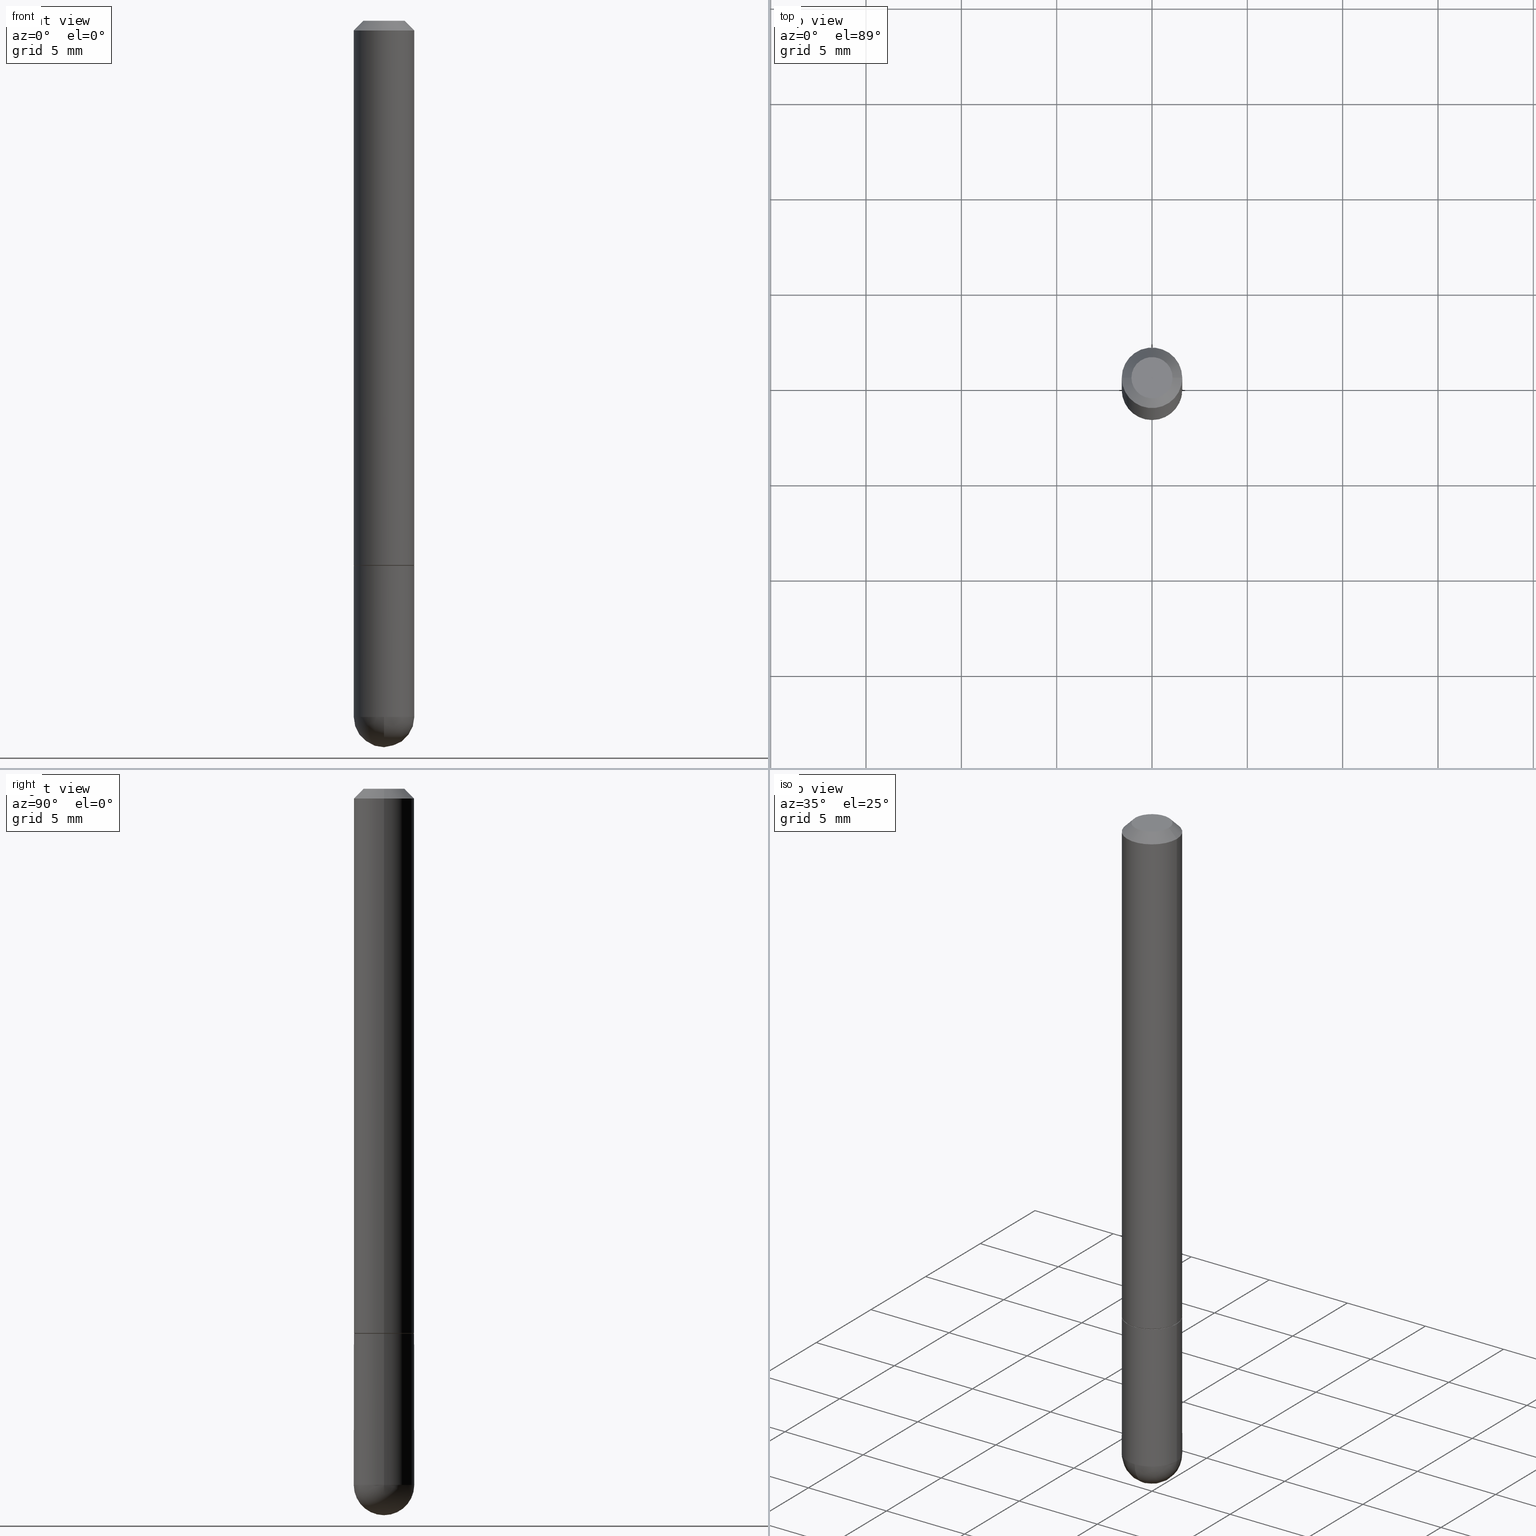
[diagram: canonical four-view strip — front | top / right | iso, engineering-drawing reading convention]
A machine part, canonical four-view strip (front | top / right | iso — engineering-drawing reading convention). The complete STEP part file that produces these views, byte-faithful:
ISO-10303-21;
HEADER;
FILE_DESCRIPTION (( 'STEP AP203' ),
    '1' );
FILE_NAME ('34630.STEP',
    '2024-02-21T18:09:59',
    ( '' ),
    ( '' ),
    'SwSTEP 2.0',
    'SolidWorks 2023',
    '' );
FILE_SCHEMA (( 'CONFIG_CONTROL_DESIGN' ));
ENDSEC;

DATA;
#1 = CIRCLE ( 'NONE', #253, 0.06250000000000020817 ) ;
#2 = AXIS2_PLACEMENT_3D ( 'NONE', #28, #339, #248 ) ;
#3 = ORIENTED_EDGE ( 'NONE', *, *, #102, .T. ) ;
#4 = EDGE_LOOP ( 'NONE', ( #14, #321, #200, #133 ) ) ;
#5 = DIRECTION ( 'NONE',  ( 2.445468806185136597E-29, -3.491481338843145583E-15, -1.000000000000000000 ) ) ;
#6 = PERSON_AND_ORGANIZATION ( #219, #113 ) ;
#7 = ORIENTED_EDGE ( 'NONE', *, *, #220, .T. ) ;
#8 = ORIENTED_EDGE ( 'NONE', *, *, #271, .F. ) ;
#9 = ORIENTED_EDGE ( 'NONE', *, *, #347, .F. ) ;
#10 = CARTESIAN_POINT ( 'NONE',  ( 0.000000000000000000, 0.000000000000000000, 0.000000000000000000 ) ) ;
#11 = EDGE_LOOP ( 'NONE', ( #385, #108 ) ) ;
#12 = DIRECTION ( 'NONE',  ( -2.445468806185136877E-29, 3.491481338843145188E-15, 1.000000000000000000 ) ) ;
#13 = DIRECTION ( 'NONE',  ( 1.000000000000000000, -6.982962677686266711E-15, 4.876176775795935793E-29 ) ) ;
#14 = ORIENTED_EDGE ( 'NONE', *, *, #119, .F. ) ;
#15 = DIRECTION ( 'NONE',  ( 6.982962677686266711E-15, 1.000000000000000000, -4.370956789862806161E-15 ) ) ;
#16 = DIRECTION ( 'NONE',  ( -2.445468806185136597E-29, 3.491481338843145583E-15, 1.000000000000000000 ) ) ;
#17 = CLOSED_SHELL ( 'NONE', ( #42, #410, #299, #365, #251 ) ) ;
#18 = LOCAL_TIME ( 13, 9, 59.00000000000000000, #382 ) ;
#19 = CARTESIAN_POINT ( 'NONE',  ( 0.06250000000000001388, -4.986107516375840208E-16, -0.02000000000000006981 ) ) ;
#20 = EDGE_CURVE ( 'NONE', #198, #361, #22, .T. ) ;
#21 = DIRECTION ( 'NONE',  ( -2.445468806185136597E-29, 3.491481338843145583E-15, 1.000000000000000000 ) ) ;
#22 = CIRCLE ( 'NONE', #292, 0.06250000000000020817 ) ;
#23 = PRODUCT_DEFINITION_FORMATION_WITH_SPECIFIED_SOURCE ( 'ANY', '', #122, .NOT_KNOWN. ) ;
#24 = EDGE_CURVE ( 'NONE', #232, #74, #117, .T. ) ;
#25 = DIRECTION ( 'NONE',  ( -2.445468806185136877E-29, 3.491481338843145188E-15, 1.000000000000000000 ) ) ;
#26 = CARTESIAN_POINT ( 'NONE',  ( 0.06250000000000001388, -4.986107516375840208E-16, -0.02000000000000006981 ) ) ;
#27 = LINE ( 'NONE', #264, #278 ) ;
#28 = CARTESIAN_POINT ( 'NONE',  ( 2.751152406958279232E-29, -3.927916506198539224E-15, -1.125000000000000222 ) ) ;
#29 = AXIS2_PLACEMENT_3D ( 'NONE', #50, #404, #90 ) ;
#30 = DATE_AND_TIME ( #99, #18 ) ;
#31 = VERTEX_POINT ( 'NONE', #274 ) ;
#32 = EDGE_LOOP ( 'NONE', ( #83, #225, #174, #106 ) ) ;
#33 = ORIENTED_EDGE ( 'NONE', *, *, #291, .T. ) ;
#34 = ORIENTED_EDGE ( 'NONE', *, *, #76, .T. ) ;
#35 = DIRECTION ( 'NONE',  ( 1.000000000000000000, 0.000000000000000000, 0.000000000000000000 ) ) ;
#36 = FACE_OUTER_BOUND ( 'NONE', #112, .T. ) ;
#37 = AXIS2_PLACEMENT_3D ( 'NONE', #10, #139, #383 ) ;
#38 = ORIENTED_EDGE ( 'NONE', *, *, #20, .T. ) ;
#39 = AXIS2_PLACEMENT_3D ( 'NONE', #296, #16, #412 ) ;
#40 = CALENDAR_DATE ( 2024, 21, 2 ) ;
#41 = DIRECTION ( 'NONE',  ( -2.445468806185136597E-29, 3.491481338843145583E-15, 1.000000000000000000 ) ) ;
#42 = ADVANCED_FACE ( 'NONE', ( #243 ), #146, .T. ) ;
#43 = LOCAL_TIME ( 13, 9, 59.00000000000000000, #170 ) ;
#44 = PRODUCT_DEFINITION ( 'UNKNOWN', '', #23, #346 ) ;
#45 = CARTESIAN_POINT ( 'NONE',  ( 0.000000000000000000, 0.000000000000000000, 0.000000000000000000 ) ) ;
#46 = DIRECTION ( 'NONE',  ( 1.000000000000000000, -6.982962677686265922E-15, 4.883557194083112340E-29 ) ) ;
#47 = EDGE_CURVE ( 'NONE', #101, #275, #158, .T. ) ;
#48 = VECTOR ( 'NONE', #25, 39.37007874015748143 ) ;
#49 = CIRCLE ( 'NONE', #323, 0.06250000000000015266 ) ;
#50 = CARTESIAN_POINT ( 'NONE',  ( 3.515361408891134418E-29, -5.019004424587023131E-15, -1.437500000000000222 ) ) ;
#51 = CARTESIAN_POINT ( 'NONE',  ( 4.364351673554191316E-16, 0.06249999999999607259, -1.125000000000000444 ) ) ;
#52 = CARTESIAN_POINT ( 'NONE',  ( 2.751152406958279232E-29, -3.927916506198539224E-15, -1.125000000000000222 ) ) ;
#53 = AXIS2_PLACEMENT_3D ( 'NONE', #342, #124, #409 ) ;
#54 = EDGE_CURVE ( 'NONE', #97, #168, #188, .T. ) ;
#55 = PLANE ( 'NONE',  #2 ) ;
#56 = PRODUCT_RELATED_PRODUCT_CATEGORY ( 'detail', '', ( #122 ) ) ;
#57 = UNCERTAINTY_MEASURE_WITH_UNIT (LENGTH_MEASURE( 1.000000000000000082E-05 ), #281, 'distance_accuracy_value', 'NONE');
#58 = FACE_OUTER_BOUND ( 'NONE', #32, .T. ) ;
#59 = CALENDAR_DATE ( 2024, 21, 2 ) ;
#60 = AXIS2_PLACEMENT_3D ( 'NONE', #78, #82, #362 ) ;
#61 = APPROVAL_PERSON_ORGANIZATION ( #211, #142, #397 ) ;
#62 = ORIENTED_EDGE ( 'NONE', *, *, #208, .T. ) ;
#63 = CARTESIAN_POINT ( 'NONE',  ( -0.06149999999999999911, -3.485634269357855609E-15, -1.125000000000000222 ) ) ;
#64 =( NAMED_UNIT ( * ) SI_UNIT ( $, .STERADIAN. ) SOLID_ANGLE_UNIT ( ) );
#65 = FACE_OUTER_BOUND ( 'NONE', #222, .T. ) ;
#66 = LINE ( 'NONE', #392, #366 ) ;
#67 = EDGE_CURVE ( 'NONE', #240, #232, #143, .T. ) ;
#68 = EDGE_LOOP ( 'NONE', ( #34, #3 ) ) ;
#69 = ORIENTED_EDGE ( 'NONE', *, *, #181, .T. ) ;
#70 = PLANE ( 'NONE',  #260 ) ;
#71 = FACE_OUTER_BOUND ( 'NONE', #4, .T. ) ;
#72 = CARTESIAN_POINT ( 'NONE',  ( 0.06250000000000000000, -4.909895632748173241E-15, -1.437500000000000222 ) ) ;
#73 = CIRCLE ( 'NONE', #384, 0.06149999999999999911 ) ;
#74 = VERTEX_POINT ( 'NONE', #138 ) ;
#75 = DIRECTION ( 'NONE',  ( 1.000000000000000000, -6.982962677686262766E-15, 0.000000000000000000 ) ) ;
#76 = EDGE_CURVE ( 'NONE', #352, #259, #237, .T. ) ;
#77 = ADVANCED_BREP_SHAPE_REPRESENTATION ( '34630', ( #93, #241, #293 ), #279 ) ;
#78 = CARTESIAN_POINT ( 'NONE',  ( 3.515361408891134418E-29, -5.019004424587023131E-15, -1.437500000000000222 ) ) ;
#79 = CONICAL_SURFACE ( 'NONE', #91, 0.06250000000000001388, 0.7853981633974460586 ) ;
#80 = CARTESIAN_POINT ( 'NONE',  ( 4.890937612370289799E-31, -6.982962677686315028E-17, -0.02000000000000006981 ) ) ;
#81 = PERSON_AND_ORGANIZATION ( #219, #113 ) ;
#82 = DIRECTION ( 'NONE',  ( -2.445468806185136597E-29, 3.491481338843145583E-15, 1.000000000000000000 ) ) ;
#83 = ORIENTED_EDGE ( 'NONE', *, *, #191, .F. ) ;
#84 = DATE_AND_TIME ( #213, #172 ) ;
#85 = LINE ( 'NONE', #216, #150 ) ;
#86 = LINE ( 'NONE', #185, #189 ) ;
#87 = EDGE_CURVE ( 'NONE', #198, #232, #1, .T. ) ;
#88 = APPLICATION_CONTEXT ( 'configuration controlled 3d designs of mechanical parts and assemblies' ) ;
#89 = FACE_OUTER_BOUND ( 'NONE', #288, .T. ) ;
#90 = DIRECTION ( 'NONE',  ( 1.000000000000000000, -6.982962677686262766E-15, 0.000000000000000000 ) ) ;
#91 = AXIS2_PLACEMENT_3D ( 'NONE', #294, #5, #169 ) ;
#92 = DIRECTION ( 'NONE',  ( 1.000000000000000000, -6.982962677686269077E-15, 0.000000000000000000 ) ) ;
#93 = MANIFOLD_SOLID_BREP ( 'Body-Move/Copy2[1]', #17 ) ;
#94 = CARTESIAN_POINT ( 'NONE',  ( 2.967759138016669466E-16, 0.04250000000000009326, -1.761332880864866905E-16 ) ) ;
#95 = DATE_TIME_ROLE ( 'creation_date' ) ;
#96 = ORIENTED_EDGE ( 'NONE', *, *, #208, .F. ) ;
#97 = VERTEX_POINT ( 'NONE', #327 ) ;
#98 = DIRECTION ( 'NONE',  ( -2.445468806185136597E-29, 3.491481338843145583E-15, 1.000000000000000000 ) ) ;
#99 = CALENDAR_DATE ( 2024, 21, 2 ) ;
#100 = CC_DESIGN_APPROVAL ( #136, ( #23 ) ) ;
#101 = VERTEX_POINT ( 'NONE', #238 ) ;
#102 = EDGE_CURVE ( 'NONE', #259, #352, #268, .T. ) ;
#103 = MECHANICAL_CONTEXT ( 'NONE', #88, 'mechanical' ) ;
#104 = ORIENTED_EDGE ( 'NONE', *, *, #20, .F. ) ;
#105 = PERSON_AND_ORGANIZATION ( #219, #113 ) ;
#106 = ORIENTED_EDGE ( 'NONE', *, *, #152, .F. ) ;
#107 = CYLINDRICAL_SURFACE ( 'NONE', #244, 0.06250000000000008327 ) ;
#108 = ORIENTED_EDGE ( 'NONE', *, *, #191, .T. ) ;
#109 = APPLICATION_PROTOCOL_DEFINITION ( 'international standard', 'config_control_design', 1994, #88 ) ;
#110 = DIRECTION ( 'NONE',  ( 6.982962677686267499E-15, 1.000000000000000000, 0.000000000000000000 ) ) ;
#111 = AXIS2_PLACEMENT_3D ( 'NONE', #394, #335, #300 ) ;
#112 = EDGE_LOOP ( 'NONE', ( #33, #62, #130, #286 ) ) ;
#113 = ORGANIZATION ( 'UNSPECIFIED', 'UNSPECIFIED', '' ) ;
#114 = APPROVAL_DATE_TIME ( #84, #142 ) ;
#115 = DIRECTION ( 'NONE',  ( -2.445468806185136597E-29, 3.491481338843145583E-15, 1.000000000000000000 ) ) ;
#116 = DIRECTION ( 'NONE',  ( 1.000000000000000000, -6.982962677686265922E-15, 4.870577812114074077E-29 ) ) ;
#117 = CIRCLE ( 'NONE', #328, 0.06250000000000000000 ) ;
#118 = CC_DESIGN_APPROVAL ( #401, ( #44 ) ) ;
#119 = EDGE_CURVE ( 'NONE', #168, #275, #212, .T. ) ;
#120 = ADVANCED_FACE ( 'NONE', ( #272 ), #398, .T. ) ;
#121 = CIRCLE ( 'NONE', #29, 0.06250000000000000000 ) ;
#122 = PRODUCT ( '34630', '34630', '', ( #103 ) ) ;
#123 = LINE ( 'NONE', #250, #48 ) ;
#124 = DIRECTION ( 'NONE',  ( -2.445468806185136597E-29, 3.491481338843145583E-15, 1.000000000000000000 ) ) ;
#125 = EDGE_CURVE ( 'NONE', #74, #361, #121, .T. ) ;
#126 = AXIS2_PLACEMENT_3D ( 'NONE', #252, #309, #92 ) ;
#127 = EDGE_CURVE ( 'NONE', #275, #101, #179, .T. ) ;
#128 = SPHERICAL_SURFACE ( 'NONE', #183, 0.06250000000000020817 ) ;
#129 = PERSON_AND_ORGANIZATION ( #219, #113 ) ;
#130 = ORIENTED_EDGE ( 'NONE', *, *, #127, .F. ) ;
#131 = DIRECTION ( 'NONE',  ( 1.000000000000000000, -6.982962677686269866E-15, 0.000000000000000000 ) ) ;
#132 = EDGE_CURVE ( 'NONE', #193, #204, #73, .T. ) ;
#133 = ORIENTED_EDGE ( 'NONE', *, *, #47, .T. ) ;
#134 = AXIS2_PLACEMENT_3D ( 'NONE', #51, #187, #306 ) ;
#135 = ORIENTED_EDGE ( 'NONE', *, *, #24, .T. ) ;
#136 = APPROVAL ( #197, 'UNSPECIFIED' ) ;
#137 = LENGTH_MEASURE_WITH_UNIT ( LENGTH_MEASURE( 0.02539999999999999897 ), #317 );
#138 = CARTESIAN_POINT ( 'NONE',  ( -0.06250000000000000000, -4.029371255542718167E-15, -1.437500000000000222 ) ) ;
#139 = DIRECTION ( 'NONE',  ( -2.445468806185136597E-29, 3.491481338843145583E-15, 1.000000000000000000 ) ) ;
#140 = VERTEX_POINT ( 'NONE', #190 ) ;
#141 = PERSON_AND_ORGANIZATION ( #219, #113 ) ;
#142 = APPROVAL ( #269, 'UNSPECIFIED' ) ;
#143 = CIRCLE ( 'NONE', #60, 0.06250000000000000000 ) ;
#144 = SECURITY_CLASSIFICATION ( '', '', #148 ) ;
#145 = DIRECTION ( 'NONE',  ( 0.7071067811865459074, -7.319954787623249734E-15, -0.7071067811865491270 ) ) ;
#146 = CYLINDRICAL_SURFACE ( 'NONE', #202, 0.06250000000000000000 ) ;
#147 = EDGE_CURVE ( 'NONE', #140, #31, #194, .T. ) ;
#148 = SECURITY_CLASSIFICATION_LEVEL ( 'unclassified' ) ;
#149 = CARTESIAN_POINT ( 'NONE',  ( 3.515361408891134418E-29, -5.019004424587023131E-15, -1.437500000000000222 ) ) ;
#150 = VECTOR ( 'NONE', #407, 39.37007874015748143 ) ;
#151 = DATE_AND_TIME ( #246, #261 ) ;
#152 = EDGE_CURVE ( 'NONE', #97, #101, #85, .T. ) ;
#153 = CARTESIAN_POINT ( 'NONE',  ( 0.06250000000000000000, -4.364351673553930894E-15, -1.125000000000000222 ) ) ;
#154 = AXIS2_PLACEMENT_3D ( 'NONE', #45, #115, #332 ) ;
#155 = CONICAL_SURFACE ( 'NONE', #53, 0.06149999999999999911, 0.7853981633975591903 ) ;
#156 = DIRECTION ( 'NONE',  ( 1.000000000000000000, -6.982962677686267499E-15, 0.000000000000000000 ) ) ;
#157 = CARTESIAN_POINT ( 'NONE',  ( 0.04250000000000009326, -3.950909582714374348E-16, -5.549066237130292766E-17 ) ) ;
#158 = CIRCLE ( 'NONE', #303, 0.06250000000000001388 ) ;
#159 = VECTOR ( 'NONE', #235, 39.37007874015748143 ) ;
#160 = DIRECTION ( 'NONE',  ( 1.000000000000000000, -6.982962677686265922E-15, 4.870577812114074077E-29 ) ) ;
#161 = EDGE_LOOP ( 'NONE', ( #9, #7, #226, #255 ) ) ;
#162 = ORIENTED_EDGE ( 'NONE', *, *, #220, .F. ) ;
#163 = APPROVAL_DATE_TIME ( #30, #136 ) ;
#164 = EDGE_CURVE ( 'NONE', #74, #259, #123, .T. ) ;
#165 = ORIENTED_EDGE ( 'NONE', *, *, #347, .T. ) ;
#166 = DIRECTION ( 'NONE',  ( 0.7071067811866259545, -2.468850131083078659E-15, 0.7071067811864690800 ) ) ;
#167 = CC_DESIGN_DATE_AND_TIME_ASSIGNMENT ( #151, #369, ( #144 ) ) ;
#168 = VERTEX_POINT ( 'NONE', #157 ) ;
#169 = DIRECTION ( 'NONE',  ( -1.000000000000000000, 6.982962677686267499E-15, 0.000000000000000000 ) ) ;
#170 = COORDINATED_UNIVERSAL_TIME_OFFSET ( 5, 0, .BEHIND. ) ;
#171 = CIRCLE ( 'NONE', #39, 0.06250000000000000000 ) ;
#172 = LOCAL_TIME ( 13, 9, 59.00000000000000000, #336 ) ;
#173 = FACE_OUTER_BOUND ( 'NONE', #380, .T. ) ;
#174 = ORIENTED_EDGE ( 'NONE', *, *, #127, .T. ) ;
#175 = PERSON_AND_ORGANIZATION ( #219, #113 ) ;
#176 = CARTESIAN_POINT ( 'NONE',  ( 2.751152406958279232E-29, -3.927916506198539224E-15, -1.125000000000000222 ) ) ;
#177 = DIRECTION ( 'NONE',  ( -1.000000000000000000, 6.982962677686267499E-15, 0.000000000000000000 ) ) ;
#178 = DIRECTION ( 'NONE',  ( -2.445468806185136597E-29, 3.491481338843145583E-15, 1.000000000000000000 ) ) ;
#179 = CIRCLE ( 'NONE', #406, 0.06250000000000001388 ) ;
#180 = CC_DESIGN_SECURITY_CLASSIFICATION ( #144, ( #23 ) ) ;
#181 = EDGE_CURVE ( 'NONE', #240, #352, #27, .T. ) ;
#182 = CARTESIAN_POINT ( 'NONE',  ( 2.751152406958279232E-29, -3.927916506198539224E-15, -1.125000000000000222 ) ) ;
#183 = AXIS2_PLACEMENT_3D ( 'NONE', #254, #221, #374 ) ;
#184 = CC_DESIGN_PERSON_AND_ORGANIZATION_ASSIGNMENT ( #105, #201, ( #122 ) ) ;
#185 = CARTESIAN_POINT ( 'NONE',  ( -0.06149999999999999911, -3.490932723706077616E-15, -1.125000000000000222 ) ) ;
#186 = DIRECTION ( 'NONE',  ( -2.445468806185136597E-29, 3.491481338843145583E-15, 1.000000000000000000 ) ) ;
#187 = DIRECTION ( 'NONE',  ( 2.438088387897960049E-29, -3.491481338843145188E-15, -1.000000000000000000 ) ) ;
#188 = CIRCLE ( 'NONE', #298, 0.04250000000000009326 ) ;
#189 = VECTOR ( 'NONE', #218, 39.37007874015748143 ) ;
#190 = CARTESIAN_POINT ( 'NONE',  ( -0.06250000000000015266, -1.553038115968214380E-15, -1.124000000000000332 ) ) ;
#191 = EDGE_CURVE ( 'NONE', #168, #97, #337, .T. ) ;
#192 = CARTESIAN_POINT ( 'NONE',  ( 4.364351673554258863E-16, 0.06249999999999485134, -1.437500000000000444 ) ) ;
#193 = VERTEX_POINT ( 'NONE', #280 ) ;
#194 = CIRCLE ( 'NONE', #126, 0.06250000000000015266 ) ;
#195 = ADVANCED_FACE ( 'NONE', ( #381 ), #70, .F. ) ;
#196 = APPROVAL_PERSON_ORGANIZATION ( #175, #401, #358 ) ;
#197 = APPROVAL_STATUS ( 'not_yet_approved' ) ;
#198 = VERTEX_POINT ( 'NONE', #350 ) ;
#199 =( NAMED_UNIT ( * ) PLANE_ANGLE_UNIT ( ) SI_UNIT ( $, .RADIAN. ) );
#200 = ORIENTED_EDGE ( 'NONE', *, *, #152, .T. ) ;
#201 = PERSON_AND_ORGANIZATION_ROLE ( 'design_owner' ) ;
#202 = AXIS2_PLACEMENT_3D ( 'NONE', #367, #178, #206 ) ;
#203 = ORIENTED_EDGE ( 'NONE', *, *, #393, .T. ) ;
#204 = VERTEX_POINT ( 'NONE', #63 ) ;
#205 = ADVANCED_FACE ( 'NONE', ( #58 ), #79, .T. ) ;
#206 = DIRECTION ( 'NONE',  ( 1.000000000000000000, -6.982962677686266711E-15, 4.876176775795935793E-29 ) ) ;
#207 = CARTESIAN_POINT ( 'NONE',  ( 4.890937612370289799E-31, -6.982962677686315028E-17, -0.02000000000000006981 ) ) ;
#208 = EDGE_CURVE ( 'NONE', #140, #101, #287, .T. ) ;
#209 = CARTESIAN_POINT ( 'NONE',  ( 3.184241630977248732E-29, -5.493186792727072638E-15, -1.437500000000000222 ) ) ;
#210 = AXIS2_PLACEMENT_3D ( 'NONE', #176, #270, #330 ) ;
#211 = PERSON_AND_ORGANIZATION ( #219, #113 ) ;
#212 = LINE ( 'NONE', #19, #322 ) ;
#213 = CALENDAR_DATE ( 2024, 21, 2 ) ;
#214 = CONICAL_SURFACE ( 'NONE', #371, 0.06250000000000001388, 0.7853981633974460586 ) ;
#215 = ADVANCED_FACE ( 'NONE', ( #71 ), #214, .T. ) ;
#216 = CARTESIAN_POINT ( 'NONE',  ( -0.06250000000000001388, 3.666055405785286670E-16, -0.02000000000000006981 ) ) ;
#217 = CARTESIAN_POINT ( 'NONE',  ( -4.440892098500297305E-16, -0.06250000000000535683, -1.437500000000000000 ) ) ;
#218 = DIRECTION ( 'NONE',  ( -0.7071067811866259545, 7.493145998870638150E-15, 0.7071067811864690800 ) ) ;
#219 = PERSON ( 'UNSPECIFIED', 'UNSPECIFIED', 'UNSPECIFIED', ('UNSPECIFIED'), ('UNSPECIFIED'), ('UNSPECIFIED') ) ;
#220 = EDGE_CURVE ( 'NONE', #204, #193, #341, .T. ) ;
#221 = DIRECTION ( 'NONE',  ( -1.000000000000000000, 6.982962677686266711E-15, -4.883557194083112901E-29 ) ) ;
#222 = EDGE_LOOP ( 'NONE', ( #257, #236, #289, #69, #316 ) ) ;
#223 = CARTESIAN_POINT ( 'NONE',  ( 1.357006838635785746E-45, -1.937446121494581442E-31, -5.549066237130534971E-17 ) ) ;
#224 = PERSON_AND_ORGANIZATION ( #219, #113 ) ;
#225 = ORIENTED_EDGE ( 'NONE', *, *, #119, .T. ) ;
#226 = ORIENTED_EDGE ( 'NONE', *, *, #399, .T. ) ;
#227 = CC_DESIGN_PERSON_AND_ORGANIZATION_ASSIGNMENT ( #81, #402, ( #23 ) ) ;
#228 = CONICAL_SURFACE ( 'NONE', #329, 0.06149999999999999911, 0.7853981633975591903 ) ;
#229 = PERSON_AND_ORGANIZATION_ROLE ( 'creator' ) ;
#230 = CARTESIAN_POINT ( 'NONE',  ( -0.06250000000000008327, 4.440892098500632078E-16, -3.074334431409319967E-30 ) ) ;
#231 = ORIENTED_EDGE ( 'NONE', *, *, #291, .F. ) ;
#232 = VERTEX_POINT ( 'NONE', #192 ) ;
#233 = CYLINDRICAL_SURFACE ( 'NONE', #37, 0.06250000000000000000 ) ;
#234 = ADVANCED_FACE ( 'NONE', ( #36 ), #107, .T. ) ;
#235 = DIRECTION ( 'NONE',  ( -2.445468806185136877E-29, 3.491481338843145188E-15, 1.000000000000000000 ) ) ;
#236 = ORIENTED_EDGE ( 'NONE', *, *, #125, .T. ) ;
#237 = CIRCLE ( 'NONE', #111, 0.06250000000000000000 ) ;
#238 = CARTESIAN_POINT ( 'NONE',  ( -0.06250000000000001388, 3.666055405785286670E-16, -0.02000000000000006981 ) ) ;
#239 = ORIENTED_EDGE ( 'NONE', *, *, #132, .F. ) ;
#240 = VERTEX_POINT ( 'NONE', #72 ) ;
#241 = MANIFOLD_SOLID_BREP ( 'Body-Move/Copy2[2]', #357 ) ;
#242 = CC_DESIGN_PERSON_AND_ORGANIZATION_ASSIGNMENT ( #141, #301, ( #144 ) ) ;
#243 = FACE_OUTER_BOUND ( 'NONE', #391, .T. ) ;
#244 = AXIS2_PLACEMENT_3D ( 'NONE', #310, #389, #13 ) ;
#245 = ORIENTED_EDGE ( 'NONE', *, *, #87, .T. ) ;
#246 = CALENDAR_DATE ( 2024, 21, 2 ) ;
#247 = DIRECTION ( 'NONE',  ( -2.445468806185136597E-29, 3.491481338843145583E-15, 1.000000000000000000 ) ) ;
#248 = DIRECTION ( 'NONE',  ( 1.000000000000000000, -6.982962677686265922E-15, 4.876176775795935793E-29 ) ) ;
#249 = AXIS2_PLACEMENT_3D ( 'NONE', #351, #315, #15 ) ;
#250 = CARTESIAN_POINT ( 'NONE',  ( -0.06250000000000000000, 4.440892098500626162E-16, -3.074334431409316114E-30 ) ) ;
#251 = ADVANCED_FACE ( 'NONE', ( #65 ), #233, .T. ) ;
#252 = CARTESIAN_POINT ( 'NONE',  ( 2.748706938152094189E-29, -3.924425024859696217E-15, -1.124000000000000332 ) ) ;
#253 = AXIS2_PLACEMENT_3D ( 'NONE', #209, #46, #110 ) ;
#254 = CARTESIAN_POINT ( 'NONE',  ( 3.184241630977248732E-29, -5.493186792727072638E-15, -1.437500000000000222 ) ) ;
#255 = ORIENTED_EDGE ( 'NONE', *, *, #147, .F. ) ;
#256 = COORDINATED_UNIVERSAL_TIME_OFFSET ( 5, 0, .BEHIND. ) ;
#257 = ORIENTED_EDGE ( 'NONE', *, *, #164, .F. ) ;
#258 = APPROVAL_ROLE ( '' ) ;
#259 = VERTEX_POINT ( 'NONE', #360 ) ;
#260 = AXIS2_PLACEMENT_3D ( 'NONE', #94, #311, #284 ) ;
#261 = LOCAL_TIME ( 13, 9, 59.00000000000000000, #334 ) ;
#262 = ORIENTED_EDGE ( 'NONE', *, *, #67, .T. ) ;
#263 = ADVANCED_FACE ( 'NONE', ( #173 ), #228, .T. ) ;
#264 = CARTESIAN_POINT ( 'NONE',  ( 0.06250000000000000000, -4.364351673553916694E-16, 3.047610484872459871E-30 ) ) ;
#265 = ORIENTED_EDGE ( 'NONE', *, *, #47, .F. ) ;
#266 = CARTESIAN_POINT ( 'NONE',  ( 0.000000000000000000, 0.000000000000000000, 0.000000000000000000 ) ) ;
#267 = ORIENTED_EDGE ( 'NONE', *, *, #399, .F. ) ;
#268 = CIRCLE ( 'NONE', #210, 0.06250000000000000000 ) ;
#269 = APPROVAL_STATUS ( 'not_yet_approved' ) ;
#270 = DIRECTION ( 'NONE',  ( -2.445468806185136597E-29, 3.491481338843145583E-15, 1.000000000000000000 ) ) ;
#271 = EDGE_CURVE ( 'NONE', #361, #240, #171, .T. ) ;
#272 = FACE_OUTER_BOUND ( 'NONE', #349, .T. ) ;
#273 = SHAPE_DEFINITION_REPRESENTATION ( #312, #77 ) ;
#274 = CARTESIAN_POINT ( 'NONE',  ( 0.06250000000000015266, -4.360860192215089464E-15, -1.124000000000000332 ) ) ;
#275 = VERTEX_POINT ( 'NONE', #26 ) ;
#276 = APPROVAL_PERSON_ORGANIZATION ( #224, #136, #258 ) ;
#277 = FACE_OUTER_BOUND ( 'NONE', #345, .T. ) ;
#278 = VECTOR ( 'NONE', #355, 39.37007874015748143 ) ;
#279 =( GEOMETRIC_REPRESENTATION_CONTEXT ( 3 ) GLOBAL_UNCERTAINTY_ASSIGNED_CONTEXT ( ( #57 ) ) GLOBAL_UNIT_ASSIGNED_CONTEXT ( ( #281, #199, #64 ) ) REPRESENTATION_CONTEXT ( 'NONE', 'WORKASPACE' ) );
#280 = CARTESIAN_POINT ( 'NONE',  ( 0.06149999999999999911, -4.357368710876244879E-15, -1.125000000000000222 ) ) ;
#281 =( CONVERSION_BASED_UNIT ( 'INCH', #137 ) LENGTH_UNIT ( ) NAMED_UNIT ( #376 ) );
#282 = ORIENTED_EDGE ( 'NONE', *, *, #125, .F. ) ;
#283 = ORIENTED_EDGE ( 'NONE', *, *, #132, .T. ) ;
#284 = DIRECTION ( 'NONE',  ( -1.000000000000000000, 6.982962677686265922E-15, -4.876176775795935793E-29 ) ) ;
#285 = DATE_AND_TIME ( #59, #43 ) ;
#286 = ORIENTED_EDGE ( 'NONE', *, *, #393, .F. ) ;
#287 = LINE ( 'NONE', #230, #159 ) ;
#288 = EDGE_LOOP ( 'NONE', ( #239, #162 ) ) ;
#289 = ORIENTED_EDGE ( 'NONE', *, *, #271, .T. ) ;
#290 = EDGE_LOOP ( 'NONE', ( #325, #38, #282, #388 ) ) ;
#291 = EDGE_CURVE ( 'NONE', #31, #140, #49, .T. ) ;
#292 = AXIS2_PLACEMENT_3D ( 'NONE', #320, #302, #370 ) ;
#293 = AXIS2_PLACEMENT_3D ( 'NONE', #266, #319, #35 ) ;
#294 = CARTESIAN_POINT ( 'NONE',  ( 4.890937612370289799E-31, -6.982962677686315028E-17, -0.02000000000000006981 ) ) ;
#295 = CARTESIAN_POINT ( 'NONE',  ( 0.06250000000000008327, -4.364351673553922611E-16, 3.047610484872464074E-30 ) ) ;
#296 = CARTESIAN_POINT ( 'NONE',  ( 3.515361408891134418E-29, -5.019004424587023131E-15, -1.437500000000000222 ) ) ;
#297 = APPROVAL_DATE_TIME ( #285, #401 ) ;
#298 = AXIS2_PLACEMENT_3D ( 'NONE', #400, #247, #116 ) ;
#299 = ADVANCED_FACE ( 'NONE', ( #277 ), #128, .T. ) ;
#300 = DIRECTION ( 'NONE',  ( 1.000000000000000000, -6.982962677686262766E-15, 0.000000000000000000 ) ) ;
#301 = PERSON_AND_ORGANIZATION_ROLE ( 'classification_officer' ) ;
#302 = DIRECTION ( 'NONE',  ( -1.000000000000000000, 7.105427357601001070E-15, -4.926315508542082329E-29 ) ) ;
#303 = AXIS2_PLACEMENT_3D ( 'NONE', #80, #403, #359 ) ;
#304 = DIRECTION ( 'NONE',  ( -2.445468806185136597E-29, 3.491481338843145583E-15, 1.000000000000000000 ) ) ;
#305 = FACE_OUTER_BOUND ( 'NONE', #68, .T. ) ;
#306 = DIRECTION ( 'NONE',  ( -1.000000000000000000, 6.982962677686265922E-15, -4.876176775795935793E-29 ) ) ;
#307 = CC_DESIGN_PERSON_AND_ORGANIZATION_ASSIGNMENT ( #6, #229, ( #23 ) ) ;
#308 = VECTOR ( 'NONE', #12, 39.37007874015748143 ) ;
#309 = DIRECTION ( 'NONE',  ( -2.445468806185136597E-29, 3.491481338843145583E-15, 1.000000000000000000 ) ) ;
#310 = CARTESIAN_POINT ( 'NONE',  ( 0.000000000000000000, 0.000000000000000000, 0.000000000000000000 ) ) ;
#311 = DIRECTION ( 'NONE',  ( 2.438088387897960049E-29, -3.491481338843145188E-15, -1.000000000000000000 ) ) ;
#312 = PRODUCT_DEFINITION_SHAPE ( 'NONE', 'NONE',  #44 ) ;
#313 = DIRECTION ( 'NONE',  ( -2.445468806185136597E-29, 3.491481338843145583E-15, 1.000000000000000000 ) ) ;
#314 = ADVANCED_FACE ( 'NONE', ( #377 ), #155, .T. ) ;
#315 = DIRECTION ( 'NONE',  ( -1.000000000000000000, 6.982962677686266711E-15, -4.883557194083112901E-29 ) ) ;
#316 = ORIENTED_EDGE ( 'NONE', *, *, #102, .F. ) ;
#317 =( LENGTH_UNIT ( ) NAMED_UNIT ( * ) SI_UNIT ( $, .METRE. ) );
#318 = ORIENTED_EDGE ( 'NONE', *, *, #181, .F. ) ;
#319 = DIRECTION ( 'NONE',  ( 0.000000000000000000, 0.000000000000000000, 1.000000000000000000 ) ) ;
#320 = CARTESIAN_POINT ( 'NONE',  ( 3.184241630977248732E-29, -5.493186792727072638E-15, -1.437500000000000222 ) ) ;
#321 = ORIENTED_EDGE ( 'NONE', *, *, #54, .F. ) ;
#322 = VECTOR ( 'NONE', #145, 39.37007874015748143 ) ;
#323 = AXIS2_PLACEMENT_3D ( 'NONE', #372, #313, #408 ) ;
#324 = APPROVAL_STATUS ( 'not_yet_approved' ) ;
#325 = ORIENTED_EDGE ( 'NONE', *, *, #87, .F. ) ;
#326 = PERSON_AND_ORGANIZATION_ROLE ( 'creator' ) ;
#327 = CARTESIAN_POINT ( 'NONE',  ( -0.04250000000000009326, 3.316907271900977082E-16, -5.549066237130754373E-17 ) ) ;
#328 = AXIS2_PLACEMENT_3D ( 'NONE', #149, #21, #75 ) ;
#329 = AXIS2_PLACEMENT_3D ( 'NONE', #353, #41, #131 ) ;
#330 = DIRECTION ( 'NONE',  ( 1.000000000000000000, -6.982962677686262766E-15, 0.000000000000000000 ) ) ;
#331 = ORIENTED_EDGE ( 'NONE', *, *, #76, .F. ) ;
#332 = DIRECTION ( 'NONE',  ( 1.000000000000000000, -6.982962677686266711E-15, 4.876176775795935793E-29 ) ) ;
#333 = ADVANCED_FACE ( 'NONE', ( #89 ), #55, .F. ) ;
#334 = COORDINATED_UNIVERSAL_TIME_OFFSET ( 5, 0, .BEHIND. ) ;
#335 = DIRECTION ( 'NONE',  ( -2.445468806185136597E-29, 3.491481338843145583E-15, 1.000000000000000000 ) ) ;
#336 = COORDINATED_UNIVERSAL_TIME_OFFSET ( 5, 0, .BEHIND. ) ;
#337 = CIRCLE ( 'NONE', #396, 0.04250000000000009326 ) ;
#338 = LOCAL_TIME ( 13, 9, 59.00000000000000000, #256 ) ;
#339 = DIRECTION ( 'NONE',  ( -2.438088387897960049E-29, 3.491481338843145188E-15, 1.000000000000000000 ) ) ;
#340 = PLANE ( 'NONE',  #134 ) ;
#341 = CIRCLE ( 'NONE', #364, 0.06149999999999999911 ) ;
#342 = CARTESIAN_POINT ( 'NONE',  ( 2.751152406958279232E-29, -3.927916506198539224E-15, -1.125000000000000222 ) ) ;
#343 = ORIENTED_EDGE ( 'NONE', *, *, #67, .F. ) ;
#344 = SPHERICAL_SURFACE ( 'NONE', #249, 0.06250000000000020817 ) ;
#345 = EDGE_LOOP ( 'NONE', ( #104, #245, #343, #8 ) ) ;
#346 = DESIGN_CONTEXT ( 'detailed design', #363, 'design' ) ;
#347 = EDGE_CURVE ( 'NONE', #204, #140, #86, .T. ) ;
#348 = LINE ( 'NONE', #295, #308 ) ;
#349 = EDGE_LOOP ( 'NONE', ( #96, #354, #203, #265 ) ) ;
#350 = CARTESIAN_POINT ( 'NONE',  ( 3.339755826017505569E-29, -5.707577355157435366E-15, -1.500000000000000444 ) ) ;
#351 = CARTESIAN_POINT ( 'NONE',  ( 3.184241630977248732E-29, -5.493186792727072638E-15, -1.437500000000000222 ) ) ;
#352 = VERTEX_POINT ( 'NONE', #153 ) ;
#353 = CARTESIAN_POINT ( 'NONE',  ( 2.751152406958279232E-29, -3.927916506198539224E-15, -1.125000000000000222 ) ) ;
#354 = ORIENTED_EDGE ( 'NONE', *, *, #147, .T. ) ;
#355 = DIRECTION ( 'NONE',  ( -2.445468806185136877E-29, 3.491481338843145188E-15, 1.000000000000000000 ) ) ;
#356 = FACE_OUTER_BOUND ( 'NONE', #290, .T. ) ;
#357 = CLOSED_SHELL ( 'NONE', ( #263, #234, #205, #215, #120, #314, #333, #195 ) ) ;
#358 = APPROVAL_ROLE ( '' ) ;
#359 = DIRECTION ( 'NONE',  ( 1.000000000000000000, -6.982962677686267499E-15, 0.000000000000000000 ) ) ;
#360 = CARTESIAN_POINT ( 'NONE',  ( -0.06250000000000000000, -4.029371255542718167E-15, -1.125000000000000222 ) ) ;
#361 = VERTEX_POINT ( 'NONE', #217 ) ;
#362 = DIRECTION ( 'NONE',  ( 1.000000000000000000, -6.982962677686262766E-15, 0.000000000000000000 ) ) ;
#363 = APPLICATION_CONTEXT ( 'configuration controlled 3d designs of mechanical parts and assemblies' ) ;
#364 = AXIS2_PLACEMENT_3D ( 'NONE', #182, #378, #405 ) ;
#365 = ADVANCED_FACE ( 'NONE', ( #305 ), #340, .F. ) ;
#366 = VECTOR ( 'NONE', #166, 39.37007874015748143 ) ;
#367 = CARTESIAN_POINT ( 'NONE',  ( 0.000000000000000000, 0.000000000000000000, 0.000000000000000000 ) ) ;
#368 = DIRECTION ( 'NONE',  ( 2.445468806185136597E-29, -3.491481338843145583E-15, -1.000000000000000000 ) ) ;
#369 = DATE_TIME_ROLE ( 'classification_date' ) ;
#370 = DIRECTION ( 'NONE',  ( -7.105427357601001859E-15, -1.000000000000000000, 0.000000000000000000 ) ) ;
#371 = AXIS2_PLACEMENT_3D ( 'NONE', #207, #368, #177 ) ;
#372 = CARTESIAN_POINT ( 'NONE',  ( 2.748706938152094189E-29, -3.924425024859696217E-15, -1.124000000000000332 ) ) ;
#373 = CC_DESIGN_PERSON_AND_ORGANIZATION_ASSIGNMENT ( #129, #326, ( #44 ) ) ;
#374 = DIRECTION ( 'NONE',  ( 6.982962677686266711E-15, 1.000000000000000000, -4.370956789862806161E-15 ) ) ;
#375 = CARTESIAN_POINT ( 'NONE',  ( 4.890937612370289799E-31, -6.982962677686315028E-17, -0.02000000000000006981 ) ) ;
#376 = DIMENSIONAL_EXPONENTS ( 1.000000000000000000, 0.000000000000000000, 0.000000000000000000, 0.000000000000000000, 0.000000000000000000, 0.000000000000000000, 0.000000000000000000 ) ;
#377 = FACE_OUTER_BOUND ( 'NONE', #161, .T. ) ;
#378 = DIRECTION ( 'NONE',  ( -2.445468806185136597E-29, 3.491481338843145583E-15, 1.000000000000000000 ) ) ;
#379 = DATE_AND_TIME ( #40, #338 ) ;
#380 = EDGE_LOOP ( 'NONE', ( #283, #165, #231, #267 ) ) ;
#381 = FACE_OUTER_BOUND ( 'NONE', #11, .T. ) ;
#382 = COORDINATED_UNIVERSAL_TIME_OFFSET ( 5, 0, .BEHIND. ) ;
#383 = DIRECTION ( 'NONE',  ( 1.000000000000000000, -6.982962677686266711E-15, 4.876176775795935793E-29 ) ) ;
#384 = AXIS2_PLACEMENT_3D ( 'NONE', #52, #304, #411 ) ;
#385 = ORIENTED_EDGE ( 'NONE', *, *, #54, .T. ) ;
#386 = CC_DESIGN_APPROVAL ( #142, ( #144 ) ) ;
#387 = CC_DESIGN_DATE_AND_TIME_ASSIGNMENT ( #379, #95, ( #44 ) ) ;
#388 = ORIENTED_EDGE ( 'NONE', *, *, #24, .F. ) ;
#389 = DIRECTION ( 'NONE',  ( -2.445468806185136597E-29, 3.491481338843145583E-15, 1.000000000000000000 ) ) ;
#390 = APPLICATION_PROTOCOL_DEFINITION ( 'international standard', 'config_control_design', 1994, #363 ) ;
#391 = EDGE_LOOP ( 'NONE', ( #135, #395, #331, #318, #262 ) ) ;
#392 = CARTESIAN_POINT ( 'NONE',  ( 0.06149999999999999911, -4.357368710876244879E-15, -1.125000000000000222 ) ) ;
#393 = EDGE_CURVE ( 'NONE', #31, #275, #348, .T. ) ;
#394 = CARTESIAN_POINT ( 'NONE',  ( 2.751152406958279232E-29, -3.927916506198539224E-15, -1.125000000000000222 ) ) ;
#395 = ORIENTED_EDGE ( 'NONE', *, *, #164, .T. ) ;
#396 = AXIS2_PLACEMENT_3D ( 'NONE', #223, #98, #160 ) ;
#397 = APPROVAL_ROLE ( '' ) ;
#398 = CYLINDRICAL_SURFACE ( 'NONE', #154, 0.06250000000000008327 ) ;
#399 = EDGE_CURVE ( 'NONE', #193, #31, #66, .T. ) ;
#400 = CARTESIAN_POINT ( 'NONE',  ( 1.357006838635785746E-45, -1.937446121494581442E-31, -5.549066237130534971E-17 ) ) ;
#401 = APPROVAL ( #324, 'UNSPECIFIED' ) ;
#402 = PERSON_AND_ORGANIZATION_ROLE ( 'design_supplier' ) ;
#403 = DIRECTION ( 'NONE',  ( -2.445468806185136597E-29, 3.491481338843145583E-15, 1.000000000000000000 ) ) ;
#404 = DIRECTION ( 'NONE',  ( -2.445468806185136597E-29, 3.491481338843145583E-15, 1.000000000000000000 ) ) ;
#405 = DIRECTION ( 'NONE',  ( 1.000000000000000000, -6.982962677686269866E-15, 0.000000000000000000 ) ) ;
#406 = AXIS2_PLACEMENT_3D ( 'NONE', #375, #186, #156 ) ;
#407 = DIRECTION ( 'NONE',  ( -0.7071067811865459074, 2.468850131082240100E-15, -0.7071067811865491270 ) ) ;
#408 = DIRECTION ( 'NONE',  ( 1.000000000000000000, -6.982962677686269077E-15, 0.000000000000000000 ) ) ;
#409 = DIRECTION ( 'NONE',  ( 1.000000000000000000, -6.982962677686269866E-15, 0.000000000000000000 ) ) ;
#410 = ADVANCED_FACE ( 'NONE', ( #356 ), #344, .T. ) ;
#411 = DIRECTION ( 'NONE',  ( 1.000000000000000000, -6.982962677686269866E-15, 0.000000000000000000 ) ) ;
#412 = DIRECTION ( 'NONE',  ( 1.000000000000000000, -6.982962677686262766E-15, 0.000000000000000000 ) ) ;
ENDSEC;
END-ISO-10303-21;
